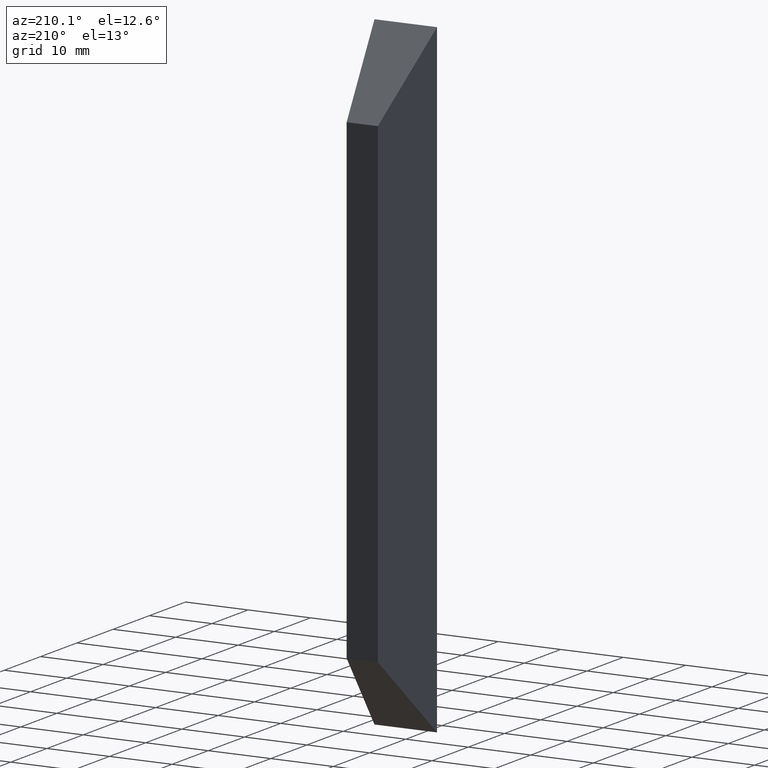
[diagram: clean part render]
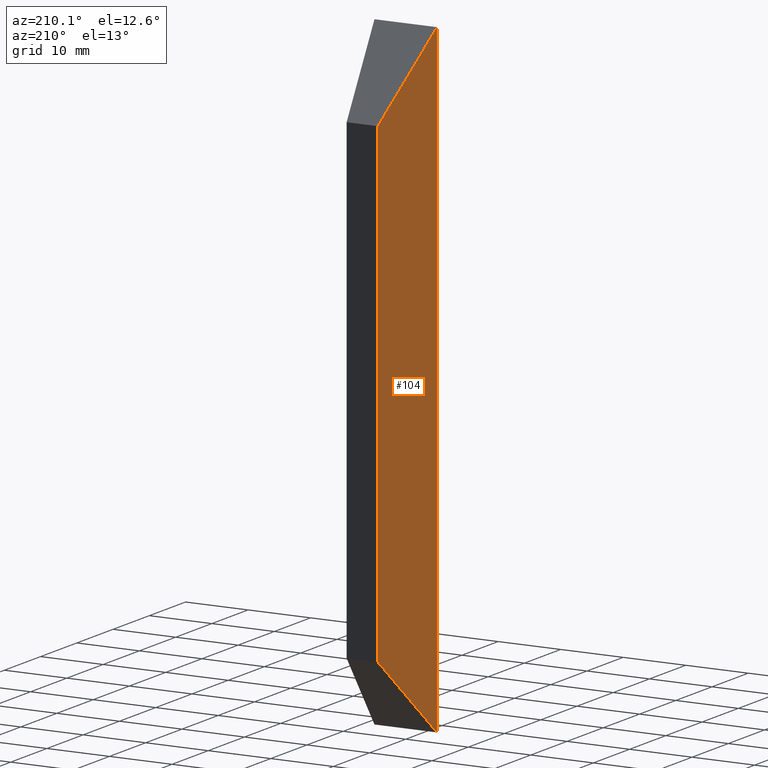
[diagram: same view with one face highlighted and labeled with its STEP entity id]
A machine part, auxiliary view. The second image highlights one B-rep face of the part: STEP entity #104.
In plain terms, the highlighted planar face has unit normal (-0.979, 0.204, 0).
Its self-contained STEP definition (entity closure, byte-faithful):
#18=FACE_OUTER_BOUND('',#24,.T.);
#24=EDGE_LOOP('',(#83,#84,#85,#86));
#29=LINE('',#170,#41);
#33=LINE('',#179,#45);
#35=LINE('',#182,#47);
#37=LINE('',#185,#49);
#41=VECTOR('',#142,10.);
#45=VECTOR('',#148,10.);
#47=VECTOR('',#152,10.);
#49=VECTOR('',#156,10.);
#53=VERTEX_POINT('',#167);
#54=VERTEX_POINT('',#169);
#57=VERTEX_POINT('',#176);
#58=VERTEX_POINT('',#178);
#61=EDGE_CURVE('',#54,#53,#29,.T.);
#65=EDGE_CURVE('',#58,#57,#33,.T.);
#67=EDGE_CURVE('',#54,#57,#35,.T.);
#69=EDGE_CURVE('',#58,#53,#37,.T.);
#83=ORIENTED_EDGE('',*,*,#61,.T.);
#84=ORIENTED_EDGE('',*,*,#69,.F.);
#85=ORIENTED_EDGE('',*,*,#65,.T.);
#86=ORIENTED_EDGE('',*,*,#67,.F.);
#98=PLANE('',#133);
#104=ADVANCED_FACE('',(#18),#98,.T.);
#133=AXIS2_PLACEMENT_3D('',#184,#154,#155);
#142=DIRECTION('',(-0.145741009332273,-0.699556844794908,-0.699556844794906));
#148=DIRECTION('',(0.145741009332273,0.699556844794908,-0.699556844794906));
#152=DIRECTION('',(0.,0.,1.));
#154=DIRECTION('center_axis',(-0.978980419737605,0.203954254112002,0.));
#155=DIRECTION('ref_axis',(-0.203954254112002,-0.978980419737605,0.));
#156=DIRECTION('',(0.,0.,-1.));
#167=CARTESIAN_POINT('',(-5.,0.,-50.));
#169=CARTESIAN_POINT('',(-2.49999999999999,12.,-38.));
#170=CARTESIAN_POINT('',(-0.536321155480012,21.4256584536959,-28.5743415463042));
#176=CARTESIAN_POINT('',(-2.49999999999999,12.,38.));
#178=CARTESIAN_POINT('',(-5.,0.,50.));
#179=CARTESIAN_POINT('',(-1.75977060322853,15.553101104503,34.4468988954971));
#182=CARTESIAN_POINT('',(-2.49999999999999,12.,0.));
#184=CARTESIAN_POINT('Origin',(-2.49999999999999,12.,0.));
#185=CARTESIAN_POINT('',(-5.,0.,0.));